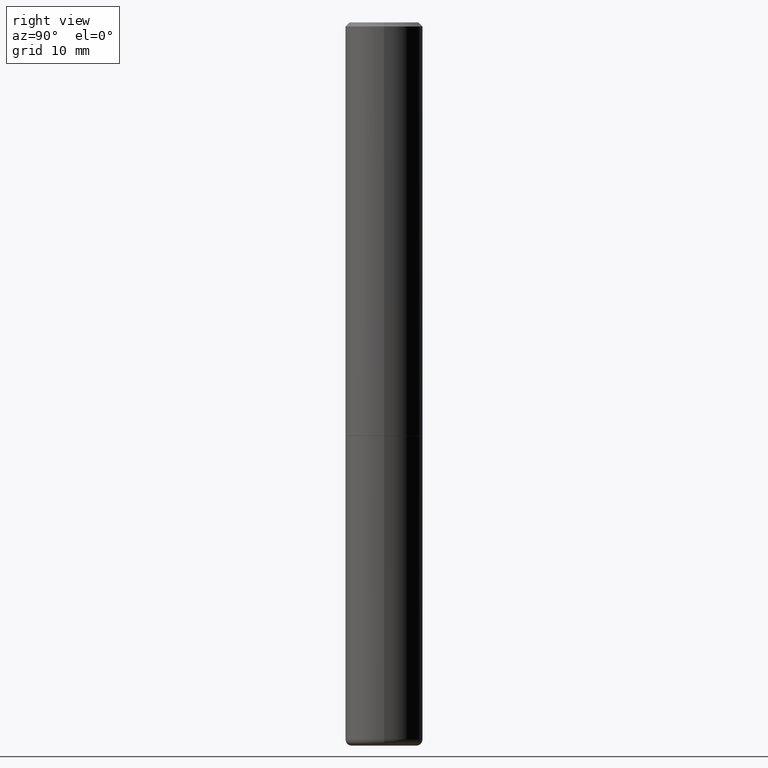
[diagram: clean part render]
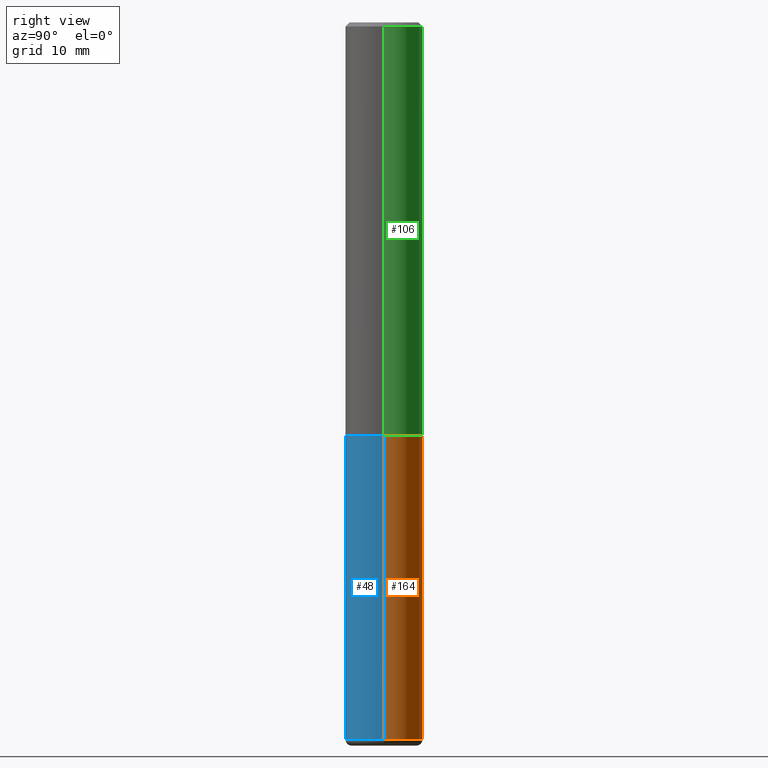
[diagram: same view with three faces highlighted in distinct colors, each labeled with its STEP entity id]
A machine part, right view with three faces highlighted in distinct colors.
Their STEP definitions:

[orange] entity #164 — the highlighted cylindrical surface (partial cylindrical patch) has radius 4.7625 mm, axis along (-0, 0, 1).
#1 = LINE ( 'NONE', #126, #357 ) ;
#10 = DIRECTION ( 'NONE',  ( -2.445468806185136597E-29, 3.491481338843145583E-15, 1.000000000000000000 ) ) ;
#24 = ORIENTED_EDGE ( 'NONE', *, *, #280, .F. ) ;
#28 = ORIENTED_EDGE ( 'NONE', *, *, #343, .T. ) ;
#60 = CARTESIAN_POINT ( 'NONE',  ( -0.1875000000000000278, -8.216933832185813748E-15, -1.999999999999999778 ) ) ;
#69 = VECTOR ( 'NONE', #71, 39.37007874015748143 ) ;
#71 = DIRECTION ( 'NONE',  ( -2.445468806185136877E-29, 3.491481338843145188E-15, 1.000000000000000000 ) ) ;
#80 = AXIS2_PLACEMENT_3D ( 'NONE', #161, #10, #358 ) ;
#83 = VERTEX_POINT ( 'NONE', #242 ) ;
#92 = VERTEX_POINT ( 'NONE', #203 ) ;
#111 = FACE_OUTER_BOUND ( 'NONE', #205, .T. ) ;
#126 = CARTESIAN_POINT ( 'NONE',  ( -0.1875000000000000278, 1.332267629550188046E-15, -9.223003294227947991E-30 ) ) ;
#145 = CARTESIAN_POINT ( 'NONE',  ( 0.1875000000000000278, -1.309305502066175008E-15, 9.142831454617381013E-30 ) ) ;
#161 = CARTESIAN_POINT ( 'NONE',  ( 4.890937612370272633E-29, -6.982962677686290376E-15, -1.999999999999999778 ) ) ;
#164 = ADVANCED_FACE ( 'NONE', ( #111 ), #413, .T. ) ;
#168 = DIRECTION ( 'NONE',  ( 1.000000000000000000, -6.982962677686261189E-15, 0.000000000000000000 ) ) ;
#176 = CARTESIAN_POINT ( 'NONE',  ( 0.000000000000000000, 0.000000000000000000, 0.000000000000000000 ) ) ;
#181 = DIRECTION ( 'NONE',  ( -2.445468806185136597E-29, 3.491481338843145583E-15, 1.000000000000000000 ) ) ;
#185 = CIRCLE ( 'NONE', #370, 0.1875000000000000278 ) ;
#203 = CARTESIAN_POINT ( 'NONE',  ( -0.1874999999999998335, -1.078317261623552812E-14, -3.469999999999999751 ) ) ;
#205 = EDGE_LOOP ( 'NONE', ( #272, #28, #24, #285 ) ) ;
#215 = VERTEX_POINT ( 'NONE', #415 ) ;
#217 = DIRECTION ( 'NONE',  ( 1.000000000000000000, -6.982962677686265922E-15, 4.876176775795935793E-29 ) ) ;
#241 = DIRECTION ( 'NONE',  ( -2.445468806185136597E-29, 3.491481338843145583E-15, 1.000000000000000000 ) ) ;
#242 = CARTESIAN_POINT ( 'NONE',  ( 0.1875000000000000278, -8.292268179752465385E-15, -1.999999999999999778 ) ) ;
#257 = DIRECTION ( 'NONE',  ( -2.445468806185136877E-29, 3.491481338843145188E-15, 1.000000000000000000 ) ) ;
#259 = VERTEX_POINT ( 'NONE', #60 ) ;
#272 = ORIENTED_EDGE ( 'NONE', *, *, #274, .T. ) ;
#274 = EDGE_CURVE ( 'NONE', #215, #92, #185, .T. ) ;
#280 = EDGE_CURVE ( 'NONE', #83, #259, #364, .T. ) ;
#285 = ORIENTED_EDGE ( 'NONE', *, *, #405, .F. ) ;
#324 = CARTESIAN_POINT ( 'NONE',  ( 8.485776757462424574E-29, -1.211544024578571439E-14, -3.469999999999999751 ) ) ;
#329 = AXIS2_PLACEMENT_3D ( 'NONE', #176, #181, #217 ) ;
#343 = EDGE_CURVE ( 'NONE', #92, #259, #1, .T. ) ;
#357 = VECTOR ( 'NONE', #257, 39.37007874015748143 ) ;
#358 = DIRECTION ( 'NONE',  ( 1.000000000000000000, -6.982962677686266711E-15, 0.000000000000000000 ) ) ;
#364 = CIRCLE ( 'NONE', #80, 0.1875000000000000278 ) ;
#370 = AXIS2_PLACEMENT_3D ( 'NONE', #324, #241, #168 ) ;
#405 = EDGE_CURVE ( 'NONE', #215, #83, #406, .T. ) ;
#406 = LINE ( 'NONE', #145, #69 ) ;
#413 = CYLINDRICAL_SURFACE ( 'NONE', #329, 0.1875000000000000278 ) ;
#415 = CARTESIAN_POINT ( 'NONE',  ( 0.1874999999999998335, -1.342474574785188940E-14, -3.469999999999999751 ) ) ;

[blue] entity #48 — the highlighted cylindrical surface (partial cylindrical patch) has radius 4.7625 mm, axis along (-0, 0, 1).
#1 = LINE ( 'NONE', #126, #357 ) ;
#20 = DIRECTION ( 'NONE',  ( -2.445468806185136597E-29, 3.491481338843145583E-15, 1.000000000000000000 ) ) ;
#32 = CARTESIAN_POINT ( 'NONE',  ( 8.485776757462424574E-29, -1.211544024578571439E-14, -3.469999999999999751 ) ) ;
#41 = CIRCLE ( 'NONE', #178, 0.1875000000000000278 ) ;
#48 = ADVANCED_FACE ( 'NONE', ( #341 ), #49, .T. ) ;
#49 = CYLINDRICAL_SURFACE ( 'NONE', #239, 0.1875000000000000278 ) ;
#60 = CARTESIAN_POINT ( 'NONE',  ( -0.1875000000000000278, -8.216933832185813748E-15, -1.999999999999999778 ) ) ;
#62 = EDGE_LOOP ( 'NONE', ( #320, #388, #149, #353 ) ) ;
#63 = DIRECTION ( 'NONE',  ( 1.000000000000000000, -6.982962677686266711E-15, 0.000000000000000000 ) ) ;
#68 = DIRECTION ( 'NONE',  ( -2.445468806185136597E-29, 3.491481338843145583E-15, 1.000000000000000000 ) ) ;
#69 = VECTOR ( 'NONE', #71, 39.37007874015748143 ) ;
#71 = DIRECTION ( 'NONE',  ( -2.445468806185136877E-29, 3.491481338843145188E-15, 1.000000000000000000 ) ) ;
#83 = VERTEX_POINT ( 'NONE', #242 ) ;
#92 = VERTEX_POINT ( 'NONE', #203 ) ;
#126 = CARTESIAN_POINT ( 'NONE',  ( -0.1875000000000000278, 1.332267629550188046E-15, -9.223003294227947991E-30 ) ) ;
#145 = CARTESIAN_POINT ( 'NONE',  ( 0.1875000000000000278, -1.309305502066175008E-15, 9.142831454617381013E-30 ) ) ;
#149 = ORIENTED_EDGE ( 'NONE', *, *, #405, .T. ) ;
#178 = AXIS2_PLACEMENT_3D ( 'NONE', #360, #68, #63 ) ;
#179 = DIRECTION ( 'NONE',  ( -2.445468806185136597E-29, 3.491481338843145583E-15, 1.000000000000000000 ) ) ;
#203 = CARTESIAN_POINT ( 'NONE',  ( -0.1874999999999998335, -1.078317261623552812E-14, -3.469999999999999751 ) ) ;
#215 = VERTEX_POINT ( 'NONE', #415 ) ;
#239 = AXIS2_PLACEMENT_3D ( 'NONE', #407, #179, #367 ) ;
#242 = CARTESIAN_POINT ( 'NONE',  ( 0.1875000000000000278, -8.292268179752465385E-15, -1.999999999999999778 ) ) ;
#257 = DIRECTION ( 'NONE',  ( -2.445468806185136877E-29, 3.491481338843145188E-15, 1.000000000000000000 ) ) ;
#259 = VERTEX_POINT ( 'NONE', #60 ) ;
#261 = EDGE_CURVE ( 'NONE', #92, #215, #263, .T. ) ;
#263 = CIRCLE ( 'NONE', #344, 0.1875000000000000278 ) ;
#297 = EDGE_CURVE ( 'NONE', #259, #83, #41, .T. ) ;
#320 = ORIENTED_EDGE ( 'NONE', *, *, #343, .F. ) ;
#327 = DIRECTION ( 'NONE',  ( 1.000000000000000000, -6.982962677686261189E-15, 0.000000000000000000 ) ) ;
#341 = FACE_OUTER_BOUND ( 'NONE', #62, .T. ) ;
#343 = EDGE_CURVE ( 'NONE', #92, #259, #1, .T. ) ;
#344 = AXIS2_PLACEMENT_3D ( 'NONE', #32, #20, #327 ) ;
#353 = ORIENTED_EDGE ( 'NONE', *, *, #297, .F. ) ;
#357 = VECTOR ( 'NONE', #257, 39.37007874015748143 ) ;
#360 = CARTESIAN_POINT ( 'NONE',  ( 4.890937612370272633E-29, -6.982962677686290376E-15, -1.999999999999999778 ) ) ;
#367 = DIRECTION ( 'NONE',  ( 1.000000000000000000, -6.982962677686265922E-15, 4.876176775795935793E-29 ) ) ;
#388 = ORIENTED_EDGE ( 'NONE', *, *, #261, .T. ) ;
#405 = EDGE_CURVE ( 'NONE', #215, #83, #406, .T. ) ;
#406 = LINE ( 'NONE', #145, #69 ) ;
#407 = CARTESIAN_POINT ( 'NONE',  ( 0.000000000000000000, 0.000000000000000000, 0.000000000000000000 ) ) ;
#415 = CARTESIAN_POINT ( 'NONE',  ( 0.1874999999999998335, -1.342474574785188940E-14, -3.469999999999999751 ) ) ;

[green] entity #106 — the highlighted cylindrical surface (partial cylindrical patch) has radius 4.7625 mm, axis along (-0, 0, 1).
#33 = ORIENTED_EDGE ( 'NONE', *, *, #301, .T. ) ;
#34 = CIRCLE ( 'NONE', #411, 0.1875000000000000555 ) ;
#45 = LINE ( 'NONE', #175, #151 ) ;
#52 = VERTEX_POINT ( 'NONE', #309 ) ;
#55 = VERTEX_POINT ( 'NONE', #374 ) ;
#56 = CARTESIAN_POINT ( 'NONE',  ( 0.1875000000000000555, -1.356173001359025663E-15, -0.02000000000000003858 ) ) ;
#58 = EDGE_CURVE ( 'NONE', #55, #237, #409, .T. ) ;
#65 = VERTEX_POINT ( 'NONE', #273 ) ;
#73 = DIRECTION ( 'NONE',  ( -2.445468806185136597E-29, 3.491481338843145583E-15, 1.000000000000000000 ) ) ;
#82 = CARTESIAN_POINT ( 'NONE',  ( 0.1875000000000001388, -1.309305502066175994E-15, 9.142831454617388019E-30 ) ) ;
#88 = EDGE_CURVE ( 'NONE', #237, #52, #34, .T. ) ;
#90 = VECTOR ( 'NONE', #173, 39.37007874015748143 ) ;
#106 = ADVANCED_FACE ( 'NONE', ( #170 ), #116, .T. ) ;
#109 = DIRECTION ( 'NONE',  ( -2.445468806185136597E-29, 3.491481338843145583E-15, 1.000000000000000000 ) ) ;
#116 = CYLINDRICAL_SURFACE ( 'NONE', #398, 0.1875000000000001388 ) ;
#130 = EDGE_CURVE ( 'NONE', #65, #52, #45, .T. ) ;
#133 = DIRECTION ( 'NONE',  ( 1.000000000000000000, -6.982962677686269077E-15, 0.000000000000000000 ) ) ;
#137 = AXIS2_PLACEMENT_3D ( 'NONE', #362, #268, #133 ) ;
#141 = DIRECTION ( 'NONE',  ( 1.000000000000000000, -6.982962677686265922E-15, 0.000000000000000000 ) ) ;
#151 = VECTOR ( 'NONE', #307, 39.37007874015748143 ) ;
#155 = EDGE_LOOP ( 'NONE', ( #33, #218, #372, #414 ) ) ;
#170 = FACE_OUTER_BOUND ( 'NONE', #155, .T. ) ;
#173 = DIRECTION ( 'NONE',  ( -2.445468806185136877E-29, 3.491481338843145188E-15, 1.000000000000000000 ) ) ;
#175 = CARTESIAN_POINT ( 'NONE',  ( -0.1875000000000001388, 1.332267629550188835E-15, -9.223003294227954997E-30 ) ) ;
#210 = CARTESIAN_POINT ( 'NONE',  ( 4.890937612370282792E-31, -6.982962677686303935E-17, -0.02000000000000003858 ) ) ;
#218 = ORIENTED_EDGE ( 'NONE', *, *, #130, .T. ) ;
#236 = DIRECTION ( 'NONE',  ( 1.000000000000000000, -6.982962677686266711E-15, 4.876176775795936914E-29 ) ) ;
#237 = VERTEX_POINT ( 'NONE', #56 ) ;
#268 = DIRECTION ( 'NONE',  ( -2.445468806185136597E-29, 3.491481338843145583E-15, 1.000000000000000000 ) ) ;
#273 = CARTESIAN_POINT ( 'NONE',  ( -0.1875000000000002220, -2.192382782011963935E-15, -1.998999999999999666 ) ) ;
#290 = CIRCLE ( 'NONE', #137, 0.1875000000000002498 ) ;
#301 = EDGE_CURVE ( 'NONE', #55, #65, #290, .T. ) ;
#307 = DIRECTION ( 'NONE',  ( -2.445468806185136877E-29, 3.491481338843145188E-15, 1.000000000000000000 ) ) ;
#309 = CARTESIAN_POINT ( 'NONE',  ( -0.1875000000000000555, 1.239475875289312104E-15, -0.02000000000000003858 ) ) ;
#362 = CARTESIAN_POINT ( 'NONE',  ( 4.888492143564087030E-29, -6.979471196347446580E-15, -1.998999999999999666 ) ) ;
#371 = CARTESIAN_POINT ( 'NONE',  ( 0.000000000000000000, 0.000000000000000000, 0.000000000000000000 ) ) ;
#372 = ORIENTED_EDGE ( 'NONE', *, *, #88, .F. ) ;
#374 = CARTESIAN_POINT ( 'NONE',  ( 0.1875000000000002498, -8.288776698413623955E-15, -1.998999999999999666 ) ) ;
#398 = AXIS2_PLACEMENT_3D ( 'NONE', #371, #109, #236 ) ;
#409 = LINE ( 'NONE', #82, #90 ) ;
#411 = AXIS2_PLACEMENT_3D ( 'NONE', #210, #73, #141 ) ;
#414 = ORIENTED_EDGE ( 'NONE', *, *, #58, .F. ) ;